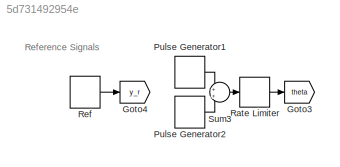
MODEL slx_5d731492954e
KIND model
CONFIG AbsTol = auto
CONFIG EnableMultiTasking = off
CONFIG FixedStep = auto
CONFIG MaxStep = auto
CONFIG MinStep = auto
CONFIG RelTol = 1e-3
CONFIG SampleTimeConstraint = Unconstrained
CONFIG Solver = VariableStepAuto
CONFIG SolverName = VariableStepAuto
CONFIG StartTime = 0.0
CONFIG StopTime = 500
BLOCK [Goto] Goto3
  GotoTag = theta
  TagVisibility = global
BLOCK [Goto] Goto4
  GotoTag = y_r
  TagVisibility = global
BLOCK [DiscretePulseGenerator] Pulse Generator1
  Period = 200
  Ports = [0, 1]
  PulseType = Time based
  PulseWidth = 50
BLOCK [DiscretePulseGenerator] Pulse Generator2
  Amplitude = -1
  Period = 200
  PhaseDelay = 50
  Ports = [0, 1]
  PulseType = Time based
  PulseWidth = 50
BLOCK [RateLimiter] Rate Limiter
  FallingSlewLimit = -0.05
  RisingSlewLimit = 0.05
  SampleTimeMode = inherited
BLOCK [DiscretePulseGenerator] Ref
  Amplitude = 0.5
  Period = 10
  Ports = [0, 1]
  PulseType = Time based
  PulseWidth = 50
BLOCK [Sum] Sum3
  IconShape = round
  InputSameDT = off
  OutDataTypeStr = Inherit: Inherit via internal rule
  Ports = [2, 1]
  SaturateOnIntegerOverflow = off
ANNOTATION (root): Reference Signals
LINE Pulse Generator1:1 -> Sum3:1
LINE Pulse Generator2:1 -> Sum3:2
LINE Rate Limiter:1 -> Goto3:1
LINE Ref:1 -> Goto4:1
LINE Sum3:1 -> Rate Limiter:1
